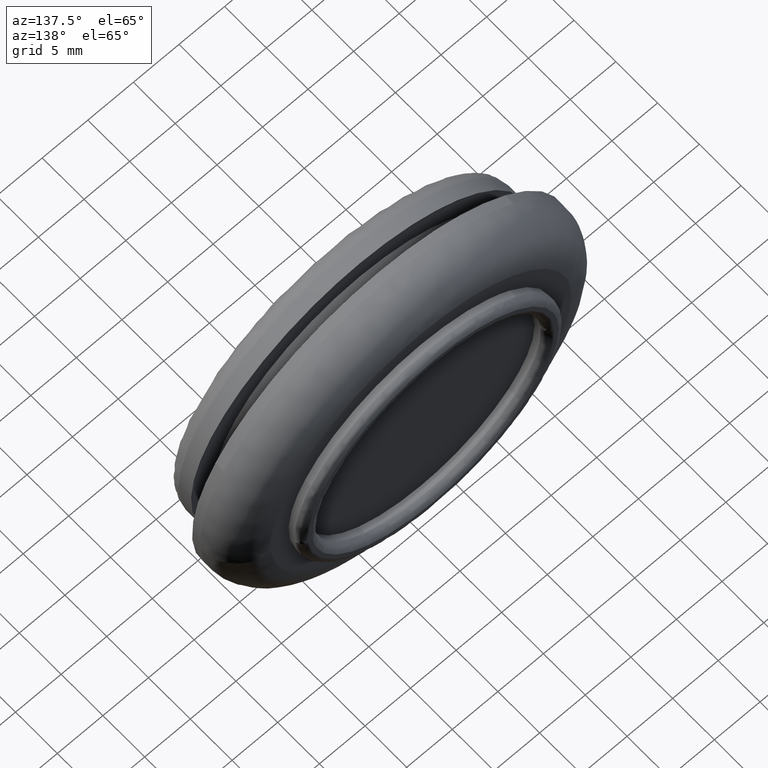
[diagram: clean part render]
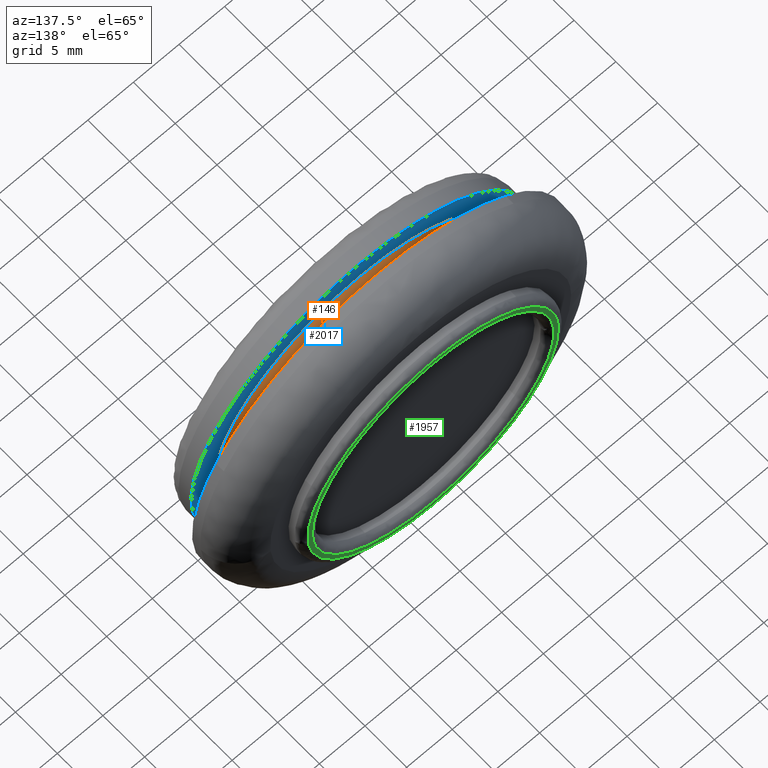
[diagram: same view with three faces highlighted in distinct colors, each labeled with its STEP entity id]
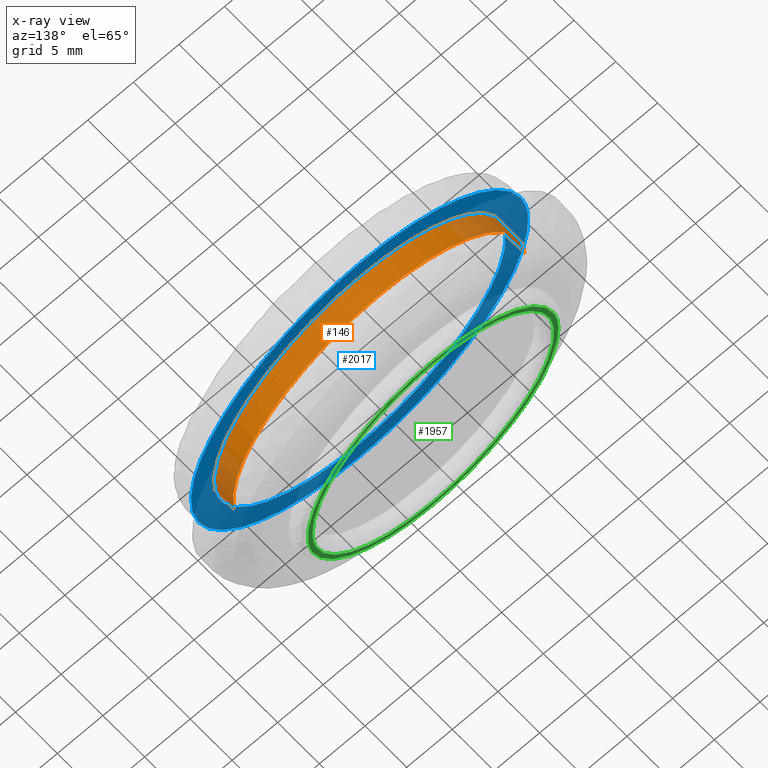
[diagram: x-ray of the same camera — body ghosted, the three highlighted faces saturated]
A machine part, auxiliary view with three faces highlighted in distinct colors.
The next image is the same camera in x-ray (body ghosted, the three faces saturated) — at least one of them is partly hidden behind the body in this view.
Their STEP definitions:

[orange] entity #146 — the highlighted face is a freeform B-spline surface patch.
#44=CARTESIAN_POINT('',(15.888152421818658,5.357499999999889,-1.888547754508136));
#45=CARTESIAN_POINT('',(15.942201847177685,5.357499999999889,-1.433835658207643));
#46=CARTESIAN_POINT('',(15.970156774749871,5.357499999999888,-0.976776632557712));
#47=CARTESIAN_POINT('',(16.946933407307572,5.357499999999889,14.993380142192160));
#48=CARTESIAN_POINT('',(0.976776632557712,5.357499999999888,15.970156774749871));
#49=CARTESIAN_POINT('',(-14.993380142192160,5.357499999999889,16.946933407307572));
#50=CARTESIAN_POINT('',(-15.970156774749871,5.357499999999888,0.976776632557711));
#51=CARTESIAN_POINT('',(15.888152421818658,2.941062500000003,-1.888547754508136));
#52=CARTESIAN_POINT('',(15.942201847177685,2.941062500000003,-1.433835658207643));
#53=CARTESIAN_POINT('',(15.970156774749871,2.941062500000002,-0.976776632557712));
#54=CARTESIAN_POINT('',(16.946933407307572,2.941062500000002,14.993380142192160));
#55=CARTESIAN_POINT('',(0.976776632557712,2.941062500000002,15.970156774749871));
#56=CARTESIAN_POINT('',(-14.993380142192160,2.941062500000002,16.946933407307572));
#57=CARTESIAN_POINT('',(-15.970156774749871,2.941062500000002,0.976776632557711));
#65=(BOUNDED_SURFACE()B_SPLINE_SURFACE(2,1,((#44,#51),(#45,#52),(#46,#53),(#47,#54),(#48,#55),(#49,#56),(#50,#57)),.UNSPECIFIED.,.F.,.F.,.U.)B_SPLINE_SURFACE_WITH_KNOTS((3,2,2,3),(2,2),(0.0,1.060386719675124,27.570054711553190,54.079722703431273),(0.0,2.416437499999886),.UNSPECIFIED.)GEOMETRIC_REPRESENTATION_ITEM()RATIONAL_B_SPLINE_SURFACE(((0.977505800795127,0.977505800795127),(0.988284271247462,0.988284271247462),(1.0,1.0),(0.707106781186548,0.707106781186548),(1.0,1.0),(0.707106781186548,0.707106781186548),(1.0,1.0)))REPRESENTATION_ITEM('')SURFACE());
#66=CARTESIAN_POINT('',(15.888154395634610,5.299999999999800,-1.888531148855327));
#67=VERTEX_POINT('',#66);
#68=CARTESIAN_POINT('',(0.0,5.299999999999890,16.0));
#69=VERTEX_POINT('',#68);
#70=CARTESIAN_POINT('',(15.888154395634611,5.299999999999800,-1.888531148855327));
#71=CARTESIAN_POINT('',(16.000000000000004,5.299999999999889,-0.947577523829039));
#72=CARTESIAN_POINT('',(16.0,5.299999999999890,-3.061516E-016));
#73=CARTESIAN_POINT('',(15.999999999999998,5.299999999999890,15.999999999999998));
#74=CARTESIAN_POINT('',(0.0,5.299999999999890,16.0));
#82=(BOUNDED_CURVE()B_SPLINE_CURVE(2,(#70,#71,#72,#73,#74),.UNSPECIFIED.,.F.,.U.)B_SPLINE_CURVE_WITH_KNOTS((3,2,3),(0.229562650151000,0.250000000000000,0.500000000000000),.UNSPECIFIED.)CURVE()GEOMETRIC_REPRESENTATION_ITEM()RATIONAL_B_SPLINE_CURVE((0.956027100400704,0.976056155274839,1.0,0.707106781186548,1.0))REPRESENTATION_ITEM(''));
#83=EDGE_CURVE('',#67,#69,#82,.T.);
#84=ORIENTED_EDGE('',*,*,#83,.T.);
#85=CARTESIAN_POINT('',(-15.970157209677920,5.299999999999744,0.976769521495030));
#86=VERTEX_POINT('',#85);
#87=CARTESIAN_POINT('',(0.0,5.299999999999890,16.0));
#88=CARTESIAN_POINT('',(-15.051303784936373,5.299999999999891,16.000000000000007));
#89=CARTESIAN_POINT('',(-15.970157209677922,5.299999999999744,0.976769521495030));
#97=(BOUNDED_CURVE()B_SPLINE_CURVE(2,(#87,#88,#89),.UNSPECIFIED.,.F.,.U.)B_SPLINE_CURVE_WITH_KNOTS((3,3),(0.500000000000000,0.739333039072216),.UNSPECIFIED.)CURVE()GEOMETRIC_REPRESENTATION_ITEM()RATIONAL_B_SPLINE_CURVE((1.0,0.719603903270931,0.976072206335104))REPRESENTATION_ITEM(''));
#98=EDGE_CURVE('',#69,#86,#97,.T.);
#99=ORIENTED_EDGE('',*,*,#98,.T.);
#100=CARTESIAN_POINT('',(-15.970157204442989,3.0,0.976769607086560));
#101=VERTEX_POINT('',#100);
#102=CARTESIAN_POINT('',(-15.970157209677920,5.299999999999744,0.976769521495030));
#103=CARTESIAN_POINT('',(-15.970157204442989,3.0,0.976769607086560));
#104=QUASI_UNIFORM_CURVE('',1,(#102,#103),.UNSPECIFIED.,.F.,.U.);
#105=EDGE_CURVE('',#86,#101,#104,.T.);
#106=ORIENTED_EDGE('',*,*,#105,.T.);
#107=CARTESIAN_POINT('',(0.0,3.0,16.0));
#108=VERTEX_POINT('',#107);
#109=CARTESIAN_POINT('',(0.0,3.0,16.0));
#110=CARTESIAN_POINT('',(-15.051303704118675,3.000000000000001,15.999999999999995));
#111=CARTESIAN_POINT('',(-15.970157204442986,3.000000000000001,0.976769607086560));
#119=(BOUNDED_CURVE()B_SPLINE_CURVE(2,(#109,#110,#111),.UNSPECIFIED.,.F.,.U.)B_SPLINE_CURVE_WITH_KNOTS((3,3),(0.500000000000000,0.739333038147458),.UNSPECIFIED.)CURVE()GEOMETRIC_REPRESENTATION_ITEM()RATIONAL_B_SPLINE_CURVE((1.0,0.719603904354353,0.976072204353168))REPRESENTATION_ITEM(''));
#120=EDGE_CURVE('',#108,#101,#119,.T.);
#121=ORIENTED_EDGE('',*,*,#120,.F.);
#122=CARTESIAN_POINT('',(15.888154371856009,3.0,-1.888531348905732));
#123=VERTEX_POINT('',#122);
#124=CARTESIAN_POINT('',(15.888154371856009,3.000000000000000,-1.888531348905732));
#125=CARTESIAN_POINT('',(15.999999999999996,3.000000000000001,-0.947577624911664));
#126=CARTESIAN_POINT('',(16.0,3.0,-3.061516E-016));
#127=CARTESIAN_POINT('',(15.999999999999998,3.0,15.999999999999998));
#128=CARTESIAN_POINT('',(0.0,3.0,16.0));
#136=(BOUNDED_CURVE()B_SPLINE_CURVE(2,(#124,#125,#126,#127,#128),.UNSPECIFIED.,.F.,.U.)B_SPLINE_CURVE_WITH_KNOTS((3,2,3),(0.229562648023051,0.250000000000000,0.500000000000000),.UNSPECIFIED.)CURVE()GEOMETRIC_REPRESENTATION_ITEM()RATIONAL_B_SPLINE_CURVE((0.956027096229831,0.976056152781792,1.0,0.707106781186548,1.0))REPRESENTATION_ITEM(''));
#137=EDGE_CURVE('',#123,#108,#136,.T.);
#138=ORIENTED_EDGE('',*,*,#137,.F.);
#139=CARTESIAN_POINT('',(15.888154395634610,5.299999999999800,-1.888531148855327));
#140=CARTESIAN_POINT('',(15.888154371856009,3.0,-1.888531348905732));
#141=QUASI_UNIFORM_CURVE('',1,(#139,#140),.UNSPECIFIED.,.F.,.U.);
#142=EDGE_CURVE('',#67,#123,#141,.T.);
#143=ORIENTED_EDGE('',*,*,#142,.F.);
#144=EDGE_LOOP('',(#84,#99,#106,#121,#138,#143));
#145=FACE_OUTER_BOUND('',#144,.T.);
#146=ADVANCED_FACE('',(#145),#65,.T.);

[blue] entity #2017 — the highlighted face is a freeform B-spline surface patch.
#100=CARTESIAN_POINT('',(-15.970157204442989,3.0,0.976769607086560));
#101=VERTEX_POINT('',#100);
#107=CARTESIAN_POINT('',(0.0,3.0,16.0));
#108=VERTEX_POINT('',#107);
#109=CARTESIAN_POINT('',(0.0,3.0,16.0));
#110=CARTESIAN_POINT('',(-15.051303704118675,3.000000000000001,15.999999999999995));
#111=CARTESIAN_POINT('',(-15.970157204442986,3.000000000000001,0.976769607086560));
#119=(BOUNDED_CURVE()B_SPLINE_CURVE(2,(#109,#110,#111),.UNSPECIFIED.,.F.,.U.)B_SPLINE_CURVE_WITH_KNOTS((3,3),(0.500000000000000,0.739333038147458),.UNSPECIFIED.)CURVE()GEOMETRIC_REPRESENTATION_ITEM()RATIONAL_B_SPLINE_CURVE((1.0,0.719603904354353,0.976072204353168))REPRESENTATION_ITEM(''));
#120=EDGE_CURVE('',#108,#101,#119,.T.);
#122=CARTESIAN_POINT('',(15.888154371856009,3.0,-1.888531348905732));
#123=VERTEX_POINT('',#122);
#124=CARTESIAN_POINT('',(15.888154371856009,3.000000000000000,-1.888531348905732));
#125=CARTESIAN_POINT('',(15.999999999999996,3.000000000000001,-0.947577624911664));
#126=CARTESIAN_POINT('',(16.0,3.0,-3.061516E-016));
#127=CARTESIAN_POINT('',(15.999999999999998,3.0,15.999999999999998));
#128=CARTESIAN_POINT('',(0.0,3.0,16.0));
#136=(BOUNDED_CURVE()B_SPLINE_CURVE(2,(#124,#125,#126,#127,#128),.UNSPECIFIED.,.F.,.U.)B_SPLINE_CURVE_WITH_KNOTS((3,2,3),(0.229562648023051,0.250000000000000,0.500000000000000),.UNSPECIFIED.)CURVE()GEOMETRIC_REPRESENTATION_ITEM()RATIONAL_B_SPLINE_CURVE((0.956027096229831,0.976056152781792,1.0,0.707106781186548,1.0))REPRESENTATION_ITEM(''));
#137=EDGE_CURVE('',#123,#108,#136,.T.);
#181=CARTESIAN_POINT('',(0.0,3.0,-16.0));
#182=VERTEX_POINT('',#181);
#183=CARTESIAN_POINT('',(0.0,3.0,-16.0));
#184=CARTESIAN_POINT('',(14.210807192138107,3.000000000000000,-16.000000000000007));
#185=CARTESIAN_POINT('',(15.888154371856009,3.000000000000000,-1.888531348905732));
#193=(BOUNDED_CURVE()B_SPLINE_CURVE(2,(#183,#184,#185),.UNSPECIFIED.,.F.,.U.)B_SPLINE_CURVE_WITH_KNOTS((3,3),(0.0,0.229562648023051),.UNSPECIFIED.)CURVE()GEOMETRIC_REPRESENTATION_ITEM()RATIONAL_B_SPLINE_CURVE((1.0,0.731050628404755,0.956027096229831))REPRESENTATION_ITEM(''));
#194=EDGE_CURVE('',#182,#123,#193,.T.);
#196=CARTESIAN_POINT('',(-15.970157204442986,3.000000000000001,0.976769607086560));
#197=CARTESIAN_POINT('',(-16.000000000000004,3.000000000000000,0.488840690192595));
#198=CARTESIAN_POINT('',(-16.0,3.0,-3.061516E-016));
#199=CARTESIAN_POINT('',(-15.999999999999998,3.0,-15.999999999999998));
#200=CARTESIAN_POINT('',(0.0,3.0,-16.0));
#208=(BOUNDED_CURVE()B_SPLINE_CURVE(2,(#196,#197,#198,#199,#200),.UNSPECIFIED.,.F.,.U.)B_SPLINE_CURVE_WITH_KNOTS((3,2,3),(0.739333038147458,0.750000000000000,1.0),.UNSPECIFIED.)CURVE()GEOMETRIC_REPRESENTATION_ITEM()RATIONAL_B_SPLINE_CURVE((0.976072204353168,0.987502876832194,1.0,0.707106781186548,1.0))REPRESENTATION_ITEM(''));
#209=EDGE_CURVE('',#101,#182,#208,.T.);
#1107=CARTESIAN_POINT('',(-6.504921358046191,3.0,-17.318660402164252));
#1108=VERTEX_POINT('',#1107);
#1114=CARTESIAN_POINT('',(0.0,3.0,-18.500000000000000));
#1115=VERTEX_POINT('',#1114);
#1116=CARTESIAN_POINT('',(-6.504921358046191,3.000000000000000,-17.318660402164252));
#1117=CARTESIAN_POINT('',(-3.359730480501058,3.000000000000000,-18.500000000000004));
#1118=CARTESIAN_POINT('',(0.0,3.0,-18.500000000000000));
#1126=(BOUNDED_CURVE()B_SPLINE_CURVE(2,(#1116,#1117,#1118),.UNSPECIFIED.,.F.,.U.)B_SPLINE_CURVE_WITH_KNOTS((3,3),(0.940284272755277,1.0),.UNSPECIFIED.)CURVE()GEOMETRIC_REPRESENTATION_ITEM()RATIONAL_B_SPLINE_CURVE((0.893499679283879,0.930038673734028,1.0))REPRESENTATION_ITEM(''));
#1127=EDGE_CURVE('',#1108,#1115,#1126,.T.);
#1129=CARTESIAN_POINT('',(0.0,3.0,18.500000000000000));
#1130=VERTEX_POINT('',#1129);
#1131=CARTESIAN_POINT('',(0.0,3.0,-18.500000000000000));
#1132=CARTESIAN_POINT('',(18.500000000000000,3.0,-18.500000000000000));
#1133=CARTESIAN_POINT('',(18.500000000000000,3.0,-3.061516E-016));
#1134=CARTESIAN_POINT('',(18.500000000000000,3.0,18.500000000000000));
#1135=CARTESIAN_POINT('',(0.0,3.0,18.500000000000000));
#1143=(BOUNDED_CURVE()B_SPLINE_CURVE(2,(#1131,#1132,#1133,#1134,#1135),.UNSPECIFIED.,.F.,.U.)B_SPLINE_CURVE_WITH_KNOTS((3,2,3),(0.0,0.250000000000000,0.500000000000000),.UNSPECIFIED.)CURVE()GEOMETRIC_REPRESENTATION_ITEM()RATIONAL_B_SPLINE_CURVE((1.0,0.707106781186548,1.0,0.707106781186548,1.0))REPRESENTATION_ITEM(''));
#1144=EDGE_CURVE('',#1115,#1130,#1143,.T.);
#1146=CARTESIAN_POINT('',(-18.465494593229131,3.0,1.129384534710848));
#1147=VERTEX_POINT('',#1146);
#1148=CARTESIAN_POINT('',(0.0,3.0,18.500000000000000));
#1149=CARTESIAN_POINT('',(-17.403074934455983,3.0,18.500000000000007));
#1150=CARTESIAN_POINT('',(-18.465494593229135,3.000000000000000,1.129384534710849));
#1158=(BOUNDED_CURVE()B_SPLINE_CURVE(2,(#1148,#1149,#1150),.UNSPECIFIED.,.F.,.U.)B_SPLINE_CURVE_WITH_KNOTS((3,3),(0.500000000000000,0.739333087891594),.UNSPECIFIED.)CURVE()GEOMETRIC_REPRESENTATION_ITEM()RATIONAL_B_SPLINE_CURVE((1.0,0.719603846075473,0.976072310964415))REPRESENTATION_ITEM(''));
#1159=EDGE_CURVE('',#1130,#1147,#1158,.T.);
#1263=CARTESIAN_POINT('',(-18.465494593229135,3.000000000000000,1.129384534710849));
#1264=CARTESIAN_POINT('',(-18.500000000000004,3.000000000000000,0.565219378830668));
#1265=CARTESIAN_POINT('',(-18.500000000000000,3.0,-3.061516E-016));
#1266=CARTESIAN_POINT('',(-18.500000000000000,3.000000000000000,-12.813286346809075));
#1267=CARTESIAN_POINT('',(-6.504921358046191,3.000000000000000,-17.318660402164252));
#1275=(BOUNDED_CURVE()B_SPLINE_CURVE(2,(#1263,#1264,#1265,#1266,#1267),.UNSPECIFIED.,.F.,.U.)B_SPLINE_CURVE_WITH_KNOTS((3,2,3),(0.739333087891594,0.750000000000000,0.940284272755277),.UNSPECIFIED.)CURVE()GEOMETRIC_REPRESENTATION_ITEM()RATIONAL_B_SPLINE_CURVE((0.976072310964415,0.987502935111075,1.0,0.777068107452520,0.893499679283879))REPRESENTATION_ITEM(''));
#1276=EDGE_CURVE('',#1147,#1108,#1275,.T.);
#2000=CARTESIAN_POINT('',(-20.344767633351530,3.0,20.348149928286819));
#2001=CARTESIAN_POINT('',(-20.344767633351530,3.0,-20.348150920704150));
#2002=CARTESIAN_POINT('',(20.347990012439929,3.0,20.348149928286819));
#2003=CARTESIAN_POINT('',(20.347990012439929,3.0,-20.348150920704150));
#2004=B_SPLINE_SURFACE_WITH_KNOTS('',1,1,((#2000,#2002),(#2001,#2003)),.UNSPECIFIED.,.F.,.F.,.U.,(2,2),(2,2),(0.0,40.696300848990973),(0.0,40.692757645791467),.UNSPECIFIED.);
#2005=ORIENTED_EDGE('',*,*,#1127,.F.);
#2006=ORIENTED_EDGE('',*,*,#1276,.F.);
#2007=ORIENTED_EDGE('',*,*,#1159,.F.);
#2008=ORIENTED_EDGE('',*,*,#1144,.F.);
#2009=EDGE_LOOP('',(#2005,#2006,#2007,#2008));
#2010=FACE_OUTER_BOUND('',#2009,.T.);
#2011=ORIENTED_EDGE('',*,*,#120,.T.);
#2012=ORIENTED_EDGE('',*,*,#209,.T.);
#2013=ORIENTED_EDGE('',*,*,#194,.T.);
#2014=ORIENTED_EDGE('',*,*,#137,.T.);
#2015=EDGE_LOOP('',(#2011,#2012,#2013,#2014));
#2016=FACE_BOUND('',#2015,.T.);
#2017=ADVANCED_FACE('',(#2010,#2016),#2004,.F.);

[green] entity #1957 — the highlighted face is a freeform B-spline surface patch.
#1469=CARTESIAN_POINT('',(13.716528015457490,11.800000000000001,-0.958832209174084));
#1470=VERTEX_POINT('',#1469);
#1484=CARTESIAN_POINT('',(0.0,11.800000000000001,13.750000000000000));
#1485=VERTEX_POINT('',#1484);
#1486=CARTESIAN_POINT('',(13.716528015457484,11.800000000000001,-0.958832209174084));
#1487=CARTESIAN_POINT('',(13.750000000000002,11.799999999999997,-0.480000343278450));
#1488=CARTESIAN_POINT('',(13.750000000000000,11.800000000000001,-3.061516E-016));
#1489=CARTESIAN_POINT('',(13.750000000000000,11.799999999999997,13.750000000000000));
#1490=CARTESIAN_POINT('',(0.0,11.800000000000001,13.750000000000000));
#1498=(BOUNDED_CURVE()B_SPLINE_CURVE(2,(#1486,#1487,#1488,#1489,#1490),.UNSPECIFIED.,.F.,.U.)B_SPLINE_CURVE_WITH_KNOTS((3,2,3),(0.237833686535106,0.250000000000000,0.500000000000000),.UNSPECIFIED.)CURVE()GEOMETRIC_REPRESENTATION_ITEM()RATIONAL_B_SPLINE_CURVE((0.972879876387005,0.985746277152694,1.0,0.707106781186547,1.0))REPRESENTATION_ITEM(''));
#1499=EDGE_CURVE('',#1470,#1485,#1498,.T.);
#1501=CARTESIAN_POINT('',(-13.748914357896600,11.800000000000001,0.172783048397300));
#1502=VERTEX_POINT('',#1501);
#1503=CARTESIAN_POINT('',(0.0,11.800000000000001,13.750000000000000));
#1504=CARTESIAN_POINT('',(-13.578289036225474,11.799999999999999,13.750000000000002));
#1505=CARTESIAN_POINT('',(-13.748914357896600,11.799999999999999,0.172783048397300));
#1513=(BOUNDED_CURVE()B_SPLINE_CURVE(2,(#1503,#1504,#1505),.UNSPECIFIED.,.F.,.U.)B_SPLINE_CURVE_WITH_KNOTS((3,3),(0.500000000000000,0.747784295921727),.UNSPECIFIED.)CURVE()GEOMETRIC_REPRESENTATION_ITEM()RATIONAL_B_SPLINE_CURVE((1.0,0.709702639984241,0.994854295644009))REPRESENTATION_ITEM(''));
#1514=EDGE_CURVE('',#1485,#1502,#1513,.T.);
#1560=CARTESIAN_POINT('',(0.0,11.800000000000001,-13.750000000000000));
#1561=VERTEX_POINT('',#1560);
#1562=CARTESIAN_POINT('',(-13.748914357896599,11.800000000000001,0.172783048397300));
#1563=CARTESIAN_POINT('',(-13.750000000000002,11.799999999999999,0.086394934888508));
#1564=CARTESIAN_POINT('',(-13.750000000000000,11.800000000000001,-3.061516E-016));
#1565=CARTESIAN_POINT('',(-13.750000000000000,11.799999999999997,-13.750000000000000));
#1566=CARTESIAN_POINT('',(0.0,11.800000000000001,-13.750000000000000));
#1574=(BOUNDED_CURVE()B_SPLINE_CURVE(2,(#1562,#1563,#1564,#1565,#1566),.UNSPECIFIED.,.F.,.U.)B_SPLINE_CURVE_WITH_KNOTS((3,2,3),(0.747784295921728,0.750000000000000,1.0),.UNSPECIFIED.)CURVE()GEOMETRIC_REPRESENTATION_ITEM()RATIONAL_B_SPLINE_CURVE((0.994854295644011,0.997404141202307,1.0,0.707106781186547,1.0))REPRESENTATION_ITEM(''));
#1575=EDGE_CURVE('',#1502,#1561,#1574,.T.);
#1577=CARTESIAN_POINT('',(0.0,11.800000000000001,-13.750000000000000));
#1578=CARTESIAN_POINT('',(12.822381649913845,11.799999999999999,-13.749999999999998));
#1579=CARTESIAN_POINT('',(13.716528015457495,11.799999999999999,-0.958832209174084));
#1587=(BOUNDED_CURVE()B_SPLINE_CURVE(2,(#1577,#1578,#1579),.UNSPECIFIED.,.F.,.U.)B_SPLINE_CURVE_WITH_KNOTS((3,3),(0.0,0.237833686535106),.UNSPECIFIED.)CURVE()GEOMETRIC_REPRESENTATION_ITEM()RATIONAL_B_SPLINE_CURVE((1.0,0.721360504033853,0.972879876387005))REPRESENTATION_ITEM(''));
#1588=EDGE_CURVE('',#1561,#1470,#1587,.T.);
#1623=CARTESIAN_POINT('',(-13.217745177660911,11.800000000000001,0.923965583358907));
#1624=VERTEX_POINT('',#1623);
#1625=CARTESIAN_POINT('',(0.0,11.800000000000001,-13.250000000000000));
#1626=VERTEX_POINT('',#1625);
#1627=CARTESIAN_POINT('',(-13.217745177660911,11.800000000000001,0.923965583358907));
#1628=CARTESIAN_POINT('',(-13.250000000000004,11.800000000000002,0.462545785374851));
#1629=CARTESIAN_POINT('',(-13.250000000000000,11.800000000000001,-3.061516E-016));
#1630=CARTESIAN_POINT('',(-13.250000000000000,11.799999999999999,-13.250000000000000));
#1631=CARTESIAN_POINT('',(0.0,11.800000000000001,-13.250000000000000));
#1639=(BOUNDED_CURVE()B_SPLINE_CURVE(2,(#1627,#1628,#1629,#1630,#1631),.UNSPECIFIED.,.F.,.U.)B_SPLINE_CURVE_WITH_KNOTS((3,2,3),(0.737833686534229,0.750000000000000,1.0),.UNSPECIFIED.)CURVE()GEOMETRIC_REPRESENTATION_ITEM()RATIONAL_B_SPLINE_CURVE((0.972879876385152,0.985746277151668,1.0,0.707106781186548,1.0))REPRESENTATION_ITEM(''));
#1640=EDGE_CURVE('',#1624,#1626,#1639,.T.);
#1659=CARTESIAN_POINT('',(13.248953835693939,11.800000000000001,-0.166500028455248));
#1660=VERTEX_POINT('',#1659);
#1674=CARTESIAN_POINT('',(0.0,11.800000000000001,-13.250000000000000));
#1675=CARTESIAN_POINT('',(13.084533071270123,11.799999999999997,-13.249999999999998));
#1676=CARTESIAN_POINT('',(13.248953835693944,11.799999999999999,-0.166500028455248));
#1684=(BOUNDED_CURVE()B_SPLINE_CURVE(2,(#1674,#1675,#1676),.UNSPECIFIED.,.F.,.U.)B_SPLINE_CURVE_WITH_KNOTS((3,3),(0.0,0.247784295921704),.UNSPECIFIED.)CURVE()GEOMETRIC_REPRESENTATION_ITEM()RATIONAL_B_SPLINE_CURVE((1.0,0.709702639984268,0.994854295643957))REPRESENTATION_ITEM(''));
#1685=EDGE_CURVE('',#1626,#1660,#1684,.T.);
#1713=CARTESIAN_POINT('',(0.0,11.800000000000001,13.250000000000000));
#1714=VERTEX_POINT('',#1713);
#1715=CARTESIAN_POINT('',(0.0,11.800000000000001,13.250000000000000));
#1716=CARTESIAN_POINT('',(-12.356113226217571,11.800000000000001,13.250000000000000));
#1717=CARTESIAN_POINT('',(-13.217745177660913,11.799999999999997,0.923965583358907));
#1725=(BOUNDED_CURVE()B_SPLINE_CURVE(2,(#1715,#1716,#1717),.UNSPECIFIED.,.F.,.U.)B_SPLINE_CURVE_WITH_KNOTS((3,3),(0.500000000000000,0.737833686534230),.UNSPECIFIED.)CURVE()GEOMETRIC_REPRESENTATION_ITEM()RATIONAL_B_SPLINE_CURVE((1.0,0.721360504034879,0.972879876385154))REPRESENTATION_ITEM(''));
#1726=EDGE_CURVE('',#1714,#1624,#1725,.T.);
#1728=CARTESIAN_POINT('',(13.248953835693946,11.800000000000001,-0.166500028455248));
#1729=CARTESIAN_POINT('',(13.250000000000000,11.799999999999994,-0.083253300893448));
#1730=CARTESIAN_POINT('',(13.250000000000000,11.800000000000001,-3.061516E-016));
#1731=CARTESIAN_POINT('',(13.250000000000000,11.799999999999999,13.250000000000000));
#1732=CARTESIAN_POINT('',(0.0,11.800000000000001,13.250000000000000));
#1740=(BOUNDED_CURVE()B_SPLINE_CURVE(2,(#1728,#1729,#1730,#1731,#1732),.UNSPECIFIED.,.F.,.U.)B_SPLINE_CURVE_WITH_KNOTS((3,2,3),(0.247784295921704,0.250000000000000,0.500000000000000),.UNSPECIFIED.)CURVE()GEOMETRIC_REPRESENTATION_ITEM()RATIONAL_B_SPLINE_CURVE((0.994854295643957,0.997404141202279,1.0,0.707106781186548,1.0))REPRESENTATION_ITEM(''));
#1741=EDGE_CURVE('',#1660,#1714,#1740,.T.);
#1940=CARTESIAN_POINT('',(-15.122407248420020,11.800000000000001,15.123624946699660));
#1941=CARTESIAN_POINT('',(-15.122407248420020,11.800000000000001,-15.123625684307139));
#1942=CARTESIAN_POINT('',(15.121924675548509,11.800000000000001,15.123624946699660));
#1943=CARTESIAN_POINT('',(15.121924675548509,11.800000000000001,-15.123625684307139));
#1944=B_SPLINE_SURFACE_WITH_KNOTS('',1,1,((#1940,#1942),(#1941,#1943)),.UNSPECIFIED.,.F.,.F.,.U.,(2,2),(2,2),(0.0,30.247250631006811),(0.0,30.244331923968531),.UNSPECIFIED.);
#1945=ORIENTED_EDGE('',*,*,#1575,.F.);
#1946=ORIENTED_EDGE('',*,*,#1514,.F.);
#1947=ORIENTED_EDGE('',*,*,#1499,.F.);
#1948=ORIENTED_EDGE('',*,*,#1588,.F.);
#1949=EDGE_LOOP('',(#1945,#1946,#1947,#1948));
#1950=FACE_OUTER_BOUND('',#1949,.T.);
#1951=ORIENTED_EDGE('',*,*,#1685,.T.);
#1952=ORIENTED_EDGE('',*,*,#1741,.T.);
#1953=ORIENTED_EDGE('',*,*,#1726,.T.);
#1954=ORIENTED_EDGE('',*,*,#1640,.T.);
#1955=EDGE_LOOP('',(#1951,#1952,#1953,#1954));
#1956=FACE_BOUND('',#1955,.T.);
#1957=ADVANCED_FACE('',(#1950,#1956),#1944,.F.);